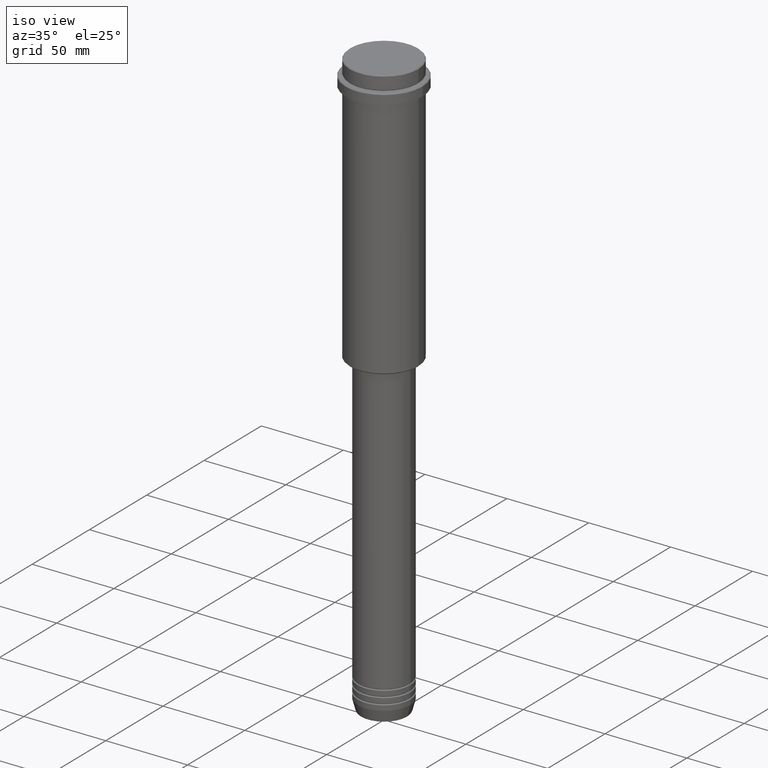
[diagram: clean part render]
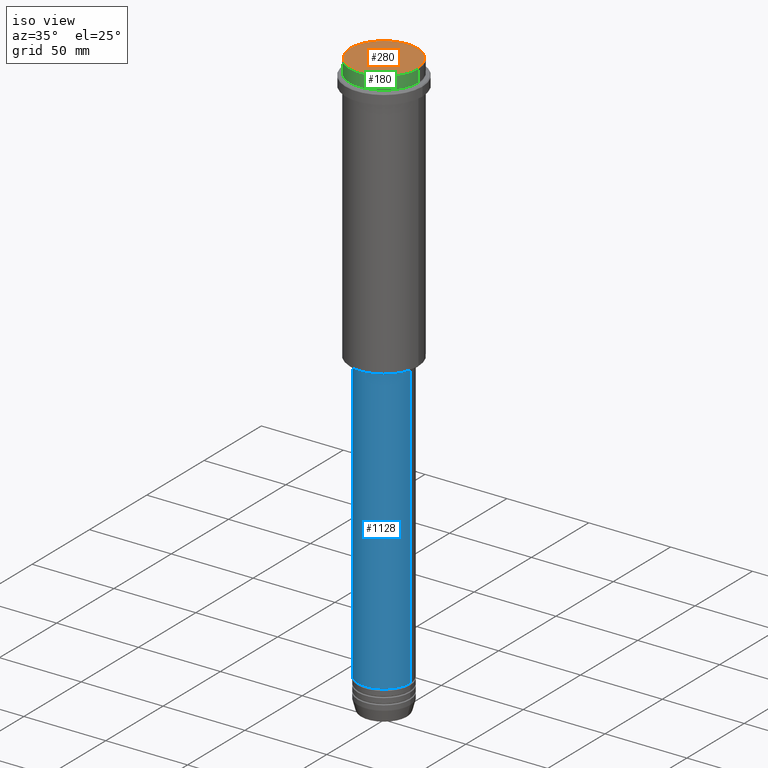
[diagram: same view with three faces highlighted in distinct colors, each labeled with its STEP entity id]
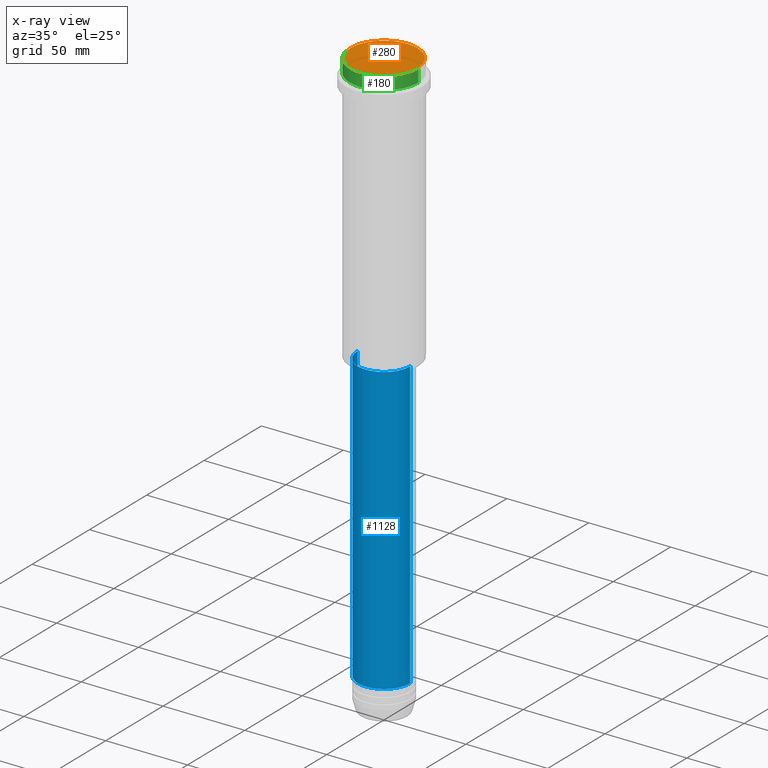
[diagram: x-ray of the same camera — body ghosted, the three highlighted faces saturated]
A machine part, iso view with three faces highlighted in distinct colors.
The next image is the same camera in x-ray (body ghosted, the three faces saturated) — at least one of them is partly hidden behind the body in this view.
Their STEP definitions:

[orange] entity #280 — the highlighted planar face has unit normal (0, -0, 1).
#74 = ORIENTED_EDGE ( 'NONE', *, *, #452, .T. ) ;
#163 = VERTEX_POINT ( 'NONE', #615 ) ;
#251 = DIRECTION ( 'NONE',  ( 1.000000000000000000, 0.000000000000000000, 0.000000000000000000 ) ) ;
#280 = ADVANCED_FACE ( 'NONE', ( #1087 ), #516, .T. ) ;
#296 = DIRECTION ( 'NONE',  ( 0.000000000000000000, -0.000000000000000000, 1.000000000000000000 ) ) ;
#314 = CARTESIAN_POINT ( 'NONE',  ( 0.000000000000000000, 0.000000000000000000, 0.000000000000000000 ) ) ;
#334 = ORIENTED_EDGE ( 'NONE', *, *, #347, .T. ) ;
#347 = EDGE_CURVE ( 'NONE', #1244, #163, #386, .T. ) ;
#386 = CIRCLE ( 'NONE', #412, 20.50000000000007461 ) ;
#412 = AXIS2_PLACEMENT_3D ( 'NONE', #314, #987, #1332 ) ;
#452 = EDGE_CURVE ( 'NONE', #163, #1244, #643, .T. ) ;
#516 = PLANE ( 'NONE',  #714 ) ;
#522 = CARTESIAN_POINT ( 'NONE',  ( 0.000000000000000000, 0.000000000000000000, 0.000000000000000000 ) ) ;
#612 = CARTESIAN_POINT ( 'NONE',  ( -20.50000000000007461, 0.000000000000000000, 0.000000000000000000 ) ) ;
#615 = CARTESIAN_POINT ( 'NONE',  ( 20.50000000000007461, 2.541142108230762213E-15, 0.000000000000000000 ) ) ;
#643 = CIRCLE ( 'NONE', #870, 20.50000000000007461 ) ;
#714 = AXIS2_PLACEMENT_3D ( 'NONE', #522, #296, #731 ) ;
#720 = EDGE_LOOP ( 'NONE', ( #334, #74 ) ) ;
#731 = DIRECTION ( 'NONE',  ( 1.000000000000000000, 0.000000000000000000, 0.000000000000000000 ) ) ;
#773 = DIRECTION ( 'NONE',  ( -0.000000000000000000, -0.000000000000000000, 1.000000000000000000 ) ) ;
#870 = AXIS2_PLACEMENT_3D ( 'NONE', #1239, #773, #251 ) ;
#987 = DIRECTION ( 'NONE',  ( -0.000000000000000000, -0.000000000000000000, 1.000000000000000000 ) ) ;
#1087 = FACE_OUTER_BOUND ( 'NONE', #720, .T. ) ;
#1239 = CARTESIAN_POINT ( 'NONE',  ( 0.000000000000000000, 0.000000000000000000, 0.000000000000000000 ) ) ;
#1244 = VERTEX_POINT ( 'NONE', #612 ) ;
#1332 = DIRECTION ( 'NONE',  ( 1.000000000000000000, 0.000000000000000000, 0.000000000000000000 ) ) ;

[blue] entity #1128 — the highlighted cylindrical surface (edge-blend (fillet) strip) has radius 16 mm, axis along (-0, -0, 1).
#21 = EDGE_LOOP ( 'NONE', ( #835, #1097, #332, #629 ) ) ;
#30 = EDGE_CURVE ( 'NONE', #994, #1325, #740, .T. ) ;
#111 = CARTESIAN_POINT ( 'NONE',  ( -16.00000000000000000, 1.959434878635765131E-15, -340.9999999999998863 ) ) ;
#128 = CYLINDRICAL_SURFACE ( 'NONE', #234, 16.00000000000000000 ) ;
#173 = VERTEX_POINT ( 'NONE', #533 ) ;
#221 = LINE ( 'NONE', #837, #736 ) ;
#234 = AXIS2_PLACEMENT_3D ( 'NONE', #557, #774, #1001 ) ;
#281 = DIRECTION ( 'NONE',  ( -0.000000000000000000, -0.000000000000000000, 1.000000000000000000 ) ) ;
#282 = AXIS2_PLACEMENT_3D ( 'NONE', #907, #453, #783 ) ;
#306 = DIRECTION ( 'NONE',  ( -0.000000000000000000, -0.000000000000000000, 1.000000000000000000 ) ) ;
#332 = ORIENTED_EDGE ( 'NONE', *, *, #30, .T. ) ;
#397 = EDGE_CURVE ( 'NONE', #874, #173, #221, .T. ) ;
#453 = DIRECTION ( 'NONE',  ( -0.000000000000000000, -0.000000000000000000, 1.000000000000000000 ) ) ;
#533 = CARTESIAN_POINT ( 'NONE',  ( -16.00000000000000355, 1.959434878635765526E-15, -165.9999999999999432 ) ) ;
#557 = CARTESIAN_POINT ( 'NONE',  ( 0.000000000000000000, 0.000000000000000000, 0.000000000000000000 ) ) ;
#626 = CIRCLE ( 'NONE', #691, 16.00000000000000000 ) ;
#629 = ORIENTED_EDGE ( 'NONE', *, *, #883, .F. ) ;
#691 = AXIS2_PLACEMENT_3D ( 'NONE', #1192, #306, #1300 ) ;
#709 = CARTESIAN_POINT ( 'NONE',  ( 16.00000000000000000, 0.000000000000000000, 0.000000000000000000 ) ) ;
#736 = VECTOR ( 'NONE', #1312, 1000.000000000000000 ) ;
#740 = LINE ( 'NONE', #709, #1057 ) ;
#774 = DIRECTION ( 'NONE',  ( -0.000000000000000000, -0.000000000000000000, 1.000000000000000000 ) ) ;
#783 = DIRECTION ( 'NONE',  ( 1.000000000000000000, 0.000000000000000000, 0.000000000000000000 ) ) ;
#835 = ORIENTED_EDGE ( 'NONE', *, *, #397, .F. ) ;
#837 = CARTESIAN_POINT ( 'NONE',  ( -16.00000000000000000, 1.959434878635765131E-15, 0.000000000000000000 ) ) ;
#874 = VERTEX_POINT ( 'NONE', #111 ) ;
#883 = EDGE_CURVE ( 'NONE', #173, #1325, #1223, .T. ) ;
#907 = CARTESIAN_POINT ( 'NONE',  ( 0.000000000000000000, 0.000000000000000000, -165.9999999999999432 ) ) ;
#994 = VERTEX_POINT ( 'NONE', #1348 ) ;
#1001 = DIRECTION ( 'NONE',  ( 1.000000000000000000, 0.000000000000000000, 0.000000000000000000 ) ) ;
#1057 = VECTOR ( 'NONE', #281, 1000.000000000000000 ) ;
#1094 = CARTESIAN_POINT ( 'NONE',  ( 16.00000000000000355, 0.000000000000000000, -165.9999999999999432 ) ) ;
#1097 = ORIENTED_EDGE ( 'NONE', *, *, #1307, .T. ) ;
#1104 = FACE_OUTER_BOUND ( 'NONE', #21, .T. ) ;
#1128 = ADVANCED_FACE ( 'NONE', ( #1104 ), #128, .T. ) ;
#1192 = CARTESIAN_POINT ( 'NONE',  ( 0.000000000000000000, 0.000000000000000000, -340.9999999999998863 ) ) ;
#1223 = CIRCLE ( 'NONE', #282, 16.00000000000000355 ) ;
#1300 = DIRECTION ( 'NONE',  ( 1.000000000000000000, 0.000000000000000000, 0.000000000000000000 ) ) ;
#1307 = EDGE_CURVE ( 'NONE', #874, #994, #626, .T. ) ;
#1312 = DIRECTION ( 'NONE',  ( -0.000000000000000000, -0.000000000000000000, 1.000000000000000000 ) ) ;
#1325 = VERTEX_POINT ( 'NONE', #1094 ) ;
#1348 = CARTESIAN_POINT ( 'NONE',  ( 16.00000000000000000, 0.000000000000000000, -340.9999999999998863 ) ) ;

[green] entity #180 — the highlighted cylindrical surface (partial cylindrical patch) has radius 21 mm, axis along (-0, -0, 1).
#23 = CYLINDRICAL_SURFACE ( 'NONE', #166, 20.99999999999999645 ) ;
#37 = CIRCLE ( 'NONE', #1407, 20.99999999999999645 ) ;
#42 = FACE_OUTER_BOUND ( 'NONE', #1058, .T. ) ;
#166 = AXIS2_PLACEMENT_3D ( 'NONE', #468, #454, #884 ) ;
#179 = ORIENTED_EDGE ( 'NONE', *, *, #1151, .T. ) ;
#180 = ADVANCED_FACE ( 'NONE', ( #42 ), #23, .T. ) ;
#181 = DIRECTION ( 'NONE',  ( 1.000000000000000000, 0.000000000000000000, 0.000000000000000000 ) ) ;
#203 = CARTESIAN_POINT ( 'NONE',  ( 20.99999999999999645, 0.000000000000000000, 0.000000000000000000 ) ) ;
#232 = ORIENTED_EDGE ( 'NONE', *, *, #1118, .F. ) ;
#270 = CARTESIAN_POINT ( 'NONE',  ( 0.000000000000000000, 0.000000000000000000, -0.4999999999999241163 ) ) ;
#272 = EDGE_CURVE ( 'NONE', #724, #746, #1411, .T. ) ;
#354 = CARTESIAN_POINT ( 'NONE',  ( -20.99999999999999645, 2.571758278209441267E-15, -7.999999999999998224 ) ) ;
#400 = ORIENTED_EDGE ( 'NONE', *, *, #272, .T. ) ;
#454 = DIRECTION ( 'NONE',  ( -0.000000000000000000, -0.000000000000000000, 1.000000000000000000 ) ) ;
#468 = CARTESIAN_POINT ( 'NONE',  ( 0.000000000000000000, 0.000000000000000000, 0.000000000000000000 ) ) ;
#509 = VERTEX_POINT ( 'NONE', #981 ) ;
#552 = AXIS2_PLACEMENT_3D ( 'NONE', #270, #617, #1266 ) ;
#617 = DIRECTION ( 'NONE',  ( 0.000000000000000000, 0.000000000000000000, -1.000000000000000000 ) ) ;
#698 = CARTESIAN_POINT ( 'NONE',  ( 20.99999999999999645, 0.000000000000000000, -7.999999999999998224 ) ) ;
#724 = VERTEX_POINT ( 'NONE', #698 ) ;
#746 = VERTEX_POINT ( 'NONE', #974 ) ;
#838 = CARTESIAN_POINT ( 'NONE',  ( -20.99999999999999645, 2.571758278209441267E-15, 0.000000000000000000 ) ) ;
#884 = DIRECTION ( 'NONE',  ( 1.000000000000000000, 0.000000000000000000, 0.000000000000000000 ) ) ;
#974 = CARTESIAN_POINT ( 'NONE',  ( 20.99999999999999645, 0.000000000000000000, -0.4999999999999241163 ) ) ;
#981 = CARTESIAN_POINT ( 'NONE',  ( -20.99999999999999645, 2.571758278209441267E-15, -0.4999999999999241163 ) ) ;
#1058 = EDGE_LOOP ( 'NONE', ( #232, #1148, #400, #179 ) ) ;
#1107 = CIRCLE ( 'NONE', #552, 20.99999999999999645 ) ;
#1118 = EDGE_CURVE ( 'NONE', #1132, #509, #1390, .T. ) ;
#1132 = VERTEX_POINT ( 'NONE', #354 ) ;
#1148 = ORIENTED_EDGE ( 'NONE', *, *, #1242, .T. ) ;
#1151 = EDGE_CURVE ( 'NONE', #746, #509, #1107, .T. ) ;
#1159 = CARTESIAN_POINT ( 'NONE',  ( 0.000000000000000000, 0.000000000000000000, -7.999999999999998224 ) ) ;
#1200 = VECTOR ( 'NONE', #1401, 1000.000000000000000 ) ;
#1204 = VECTOR ( 'NONE', #1261, 1000.000000000000000 ) ;
#1242 = EDGE_CURVE ( 'NONE', #1132, #724, #37, .T. ) ;
#1261 = DIRECTION ( 'NONE',  ( -0.000000000000000000, -0.000000000000000000, 1.000000000000000000 ) ) ;
#1266 = DIRECTION ( 'NONE',  ( 1.000000000000000000, 0.000000000000000000, 0.000000000000000000 ) ) ;
#1372 = DIRECTION ( 'NONE',  ( -0.000000000000000000, -0.000000000000000000, 1.000000000000000000 ) ) ;
#1390 = LINE ( 'NONE', #838, #1204 ) ;
#1401 = DIRECTION ( 'NONE',  ( -0.000000000000000000, -0.000000000000000000, 1.000000000000000000 ) ) ;
#1407 = AXIS2_PLACEMENT_3D ( 'NONE', #1159, #1372, #181 ) ;
#1411 = LINE ( 'NONE', #203, #1200 ) ;